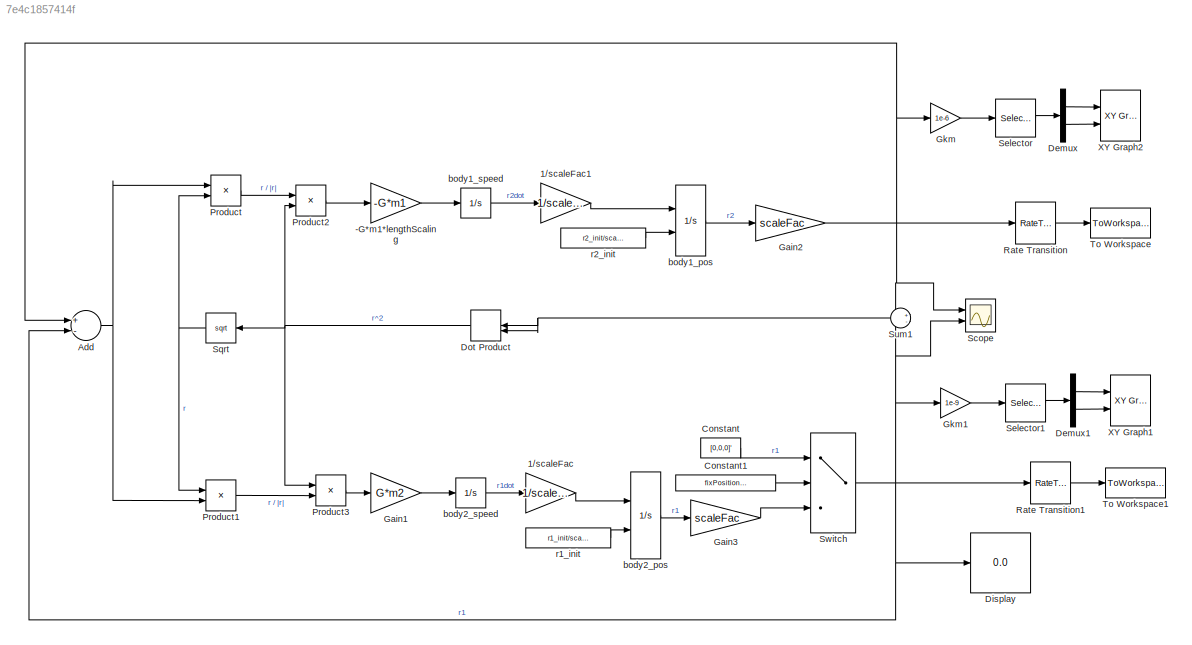
MODEL slx_7e4c1857414f
KIND model
BLOCK [Gain] -G*m1*lengthScaling
  Gain = -G*m1
  OutDataTypeStr = Inherit: Inherit via internal rule
  ParamDataTypeStr = Inherit: Inherit via internal rule
  SaturateOnIntegerOverflow = off
BLOCK [Gain] 1//scaleFac
  Gain = 1/scaleFac
  OutDataTypeStr = Inherit: Inherit via internal rule
  ParamDataTypeStr = Inherit: Inherit via internal rule
  SaturateOnIntegerOverflow = off
BLOCK [Gain] 1//scaleFac1
  Gain = 1/scaleFac
  OutDataTypeStr = Inherit: Inherit via internal rule
  ParamDataTypeStr = Inherit: Inherit via internal rule
  SaturateOnIntegerOverflow = off
BLOCK [Sum] Add
  InputSameDT = off
  Inputs = +-
  OutDataTypeStr = Inherit: Inherit via internal rule
  Ports = [2, 1]
  SaturateOnIntegerOverflow = off
BLOCK [Constant] Constant
  Value = [0,0,0]'
BLOCK [Constant] Constant1
  Value = fixPositionOfMass1
BLOCK [Demux] Demux
  Commented = on
  DisplayOption = bar
  Outputs = 2
  Ports = [1, 2]
BLOCK [Demux] Demux1
  Commented = on
  DisplayOption = bar
  Outputs = 2
  Ports = [1, 2]
BLOCK [Display] Display
  Decimation = 1
  Ports = [1]
BLOCK [DotProduct] Dot Product
  OutDataTypeStr = Inherit: Inherit via internal rule
BLOCK [Gain] Gain1
  Gain = G*m2
  OutDataTypeStr = Inherit: Inherit via internal rule
  ParamDataTypeStr = Inherit: Inherit via internal rule
  SaturateOnIntegerOverflow = off
BLOCK [Gain] Gain2
  Gain = scaleFac
  OutDataTypeStr = Inherit: Inherit via internal rule
  ParamDataTypeStr = Inherit: Inherit via internal rule
  SaturateOnIntegerOverflow = off
BLOCK [Gain] Gain3
  Gain = scaleFac
  OutDataTypeStr = Inherit: Inherit via internal rule
  ParamDataTypeStr = Inherit: Inherit via internal rule
  SaturateOnIntegerOverflow = off
BLOCK [Gain] Gkm
  Commented = on
  Gain = 1e-6
  OutDataTypeStr = Inherit: Inherit via internal rule
  ParamDataTypeStr = Inherit: Inherit via internal rule
  SaturateOnIntegerOverflow = off
BLOCK [Gain] Gkm1
  Commented = on
  Gain = 1e-9
  OutDataTypeStr = Inherit: Inherit via internal rule
  ParamDataTypeStr = Inherit: Inherit via internal rule
  SaturateOnIntegerOverflow = off
BLOCK [Product] Product
  InputSameDT = off
  Inputs = */
  OutDataTypeStr = Inherit: Inherit via internal rule
  Ports = [2, 1]
  RndMeth = Floor
  SaturateOnIntegerOverflow = off
BLOCK [Product] Product1
  InputSameDT = off
  Inputs = /*
  OutDataTypeStr = Inherit: Inherit via internal rule
  Ports = [2, 1]
  RndMeth = Floor
  SaturateOnIntegerOverflow = off
BLOCK [Product] Product2
  InputSameDT = off
  Inputs = */
  OutDataTypeStr = Inherit: Inherit via internal rule
  Ports = [2, 1]
  RndMeth = Floor
  SaturateOnIntegerOverflow = off
BLOCK [Product] Product3
  InputSameDT = off
  Inputs = /*
  OutDataTypeStr = Inherit: Inherit via internal rule
  Ports = [2, 1]
  RndMeth = Floor
  SaturateOnIntegerOverflow = off
BLOCK [RateTransition] Rate Transition
  OutPortSampleTime = T_sample
BLOCK [RateTransition] Rate Transition1
  OutPortSampleTime = T_sample
BLOCK [Scope] Scope
  DataFormat = StructureWithTime
  Floating = off
  LimitDataPoints = off
  NumInputPorts = 2
  Ports = [2]
  SampleTime = 0
  ShowLegends = off
  YMax = 2e+07~2.25e+06
  YMin = -2e+07~-2.25e+06
  ZoomMode = xonly
BLOCK [Selector] Selector
  Commented = on
  Indices = [1 2]
  InputPortWidth = 3
  Ports = [1, 1]
BLOCK [Selector] Selector1
  Commented = on
  Indices = [1 2]
  InputPortWidth = 3
  Ports = [1, 1]
BLOCK [Sqrt] Sqrt
BLOCK [Sum] Sum1
  IconShape = round
  InputSameDT = off
  Inputs = +-
  OutDataTypeStr = Inherit: Inherit via internal rule
  Ports = [2, 1]
  SaturateOnIntegerOverflow = off
BLOCK [Switch] Switch
  Criteria = u2 > Threshold
  InputSameDT = off
  SaturateOnIntegerOverflow = off
BLOCK [ToWorkspace] To Workspace
  FixptAsFi = on
  MaxDataPoints = inf
  Ports = [1]
  SampleTime = -1
  Save2DSignal = 3-D array (concatenate along third dimension)
  SaveFormat = Timeseries
  VariableName = r2
BLOCK [ToWorkspace] To Workspace1
  FixptAsFi = on
  MaxDataPoints = inf
  Ports = [1]
  SampleTime = -1
  Save2DSignal = 3-D array (concatenate along third dimension)
  SaveFormat = Timeseries
  VariableName = r1
BLOCK [Reference] XY Graph1  REF=simulink/Sinks/XY Graph
  Commented = on
  Ports = [2]
  SourceBlock = simulink/Sinks/XY Graph
  SourceType = XY scope.
  st = -1
  xmax = r2_init(1)*1.5
  xmin = -r2_init(1)*1.5
  ymax = r2_init(1)*1.5
  ymin = -r2_init(1)*1.5
BLOCK [Reference] XY Graph2  REF=simulink/Sinks/XY Graph
  Commented = on
  Ports = [2]
  SourceBlock = simulink/Sinks/XY Graph
  SourceType = XY scope.
  st = -1
  xmax = r2_init(1)*1.5
  xmin = -r2_init(1)*1.5
  ymax = r2_init(1)*1.5
  ymin = -r2_init(1)*1.5
BLOCK [Integrator] body1_pos
  InitialCondition = r2_init
  InitialConditionSource = external
  Ports = [2, 1]
BLOCK [Integrator] body1_speed
  InitialCondition = r2dot_init
  Ports = [1, 1]
BLOCK [Integrator] body2_pos
  InitialCondition = r1_init
  InitialConditionSource = external
  Ports = [2, 1]
BLOCK [Integrator] body2_speed
  InitialCondition = r1dot_init
  Ports = [1, 1]
BLOCK [Constant] r1_init
  Value = r1_init/scaleFac
BLOCK [Constant] r2_init
  Value = r2_init/scaleFac
LINE -G*m1*lengthScaling:1 -> body1_speed:1
LINE 1//scaleFac1:1 -> body1_pos:1
LINE 1//scaleFac:1 -> body2_pos:1
NET Add:1 -> Product1:2, Product:1
LINE Constant1:1 -> Switch:2
LINE Constant:1 -> Switch:1
LINE Demux1:1 -> XY Graph1:1
LINE Demux1:2 -> XY Graph1:2
LINE Demux:1 -> XY Graph2:1
LINE Demux:2 -> XY Graph2:2
NET Dot Product:1 -> Product2:2, Product3:1, Sqrt:1
LINE Gain1:1 -> body2_speed:1
NET Gain2:1 -> Add:1, Gkm:1, Rate Transition:1, Scope:1, Sum1:1
LINE Gain3:1 -> Switch:3
LINE Gkm1:1 -> Selector1:1
LINE Gkm:1 -> Selector:1
LINE Product1:1 -> Product3:2
LINE Product2:1 -> -G*m1*lengthScaling:1
LINE Product3:1 -> Gain1:1
LINE Product:1 -> Product2:1
LINE Rate Transition1:1 -> To Workspace1:1
LINE Rate Transition:1 -> To Workspace:1
LINE Selector1:1 -> Demux1:1
LINE Selector:1 -> Demux:1
NET Sqrt:1 -> Product1:1, Product:2
NET Sum1:1 -> Dot Product:1, Dot Product:2
NET Switch:1 -> Add:2, Display:1, Gkm1:1, Rate Transition1:1, Scope:2, Sum1:2
LINE body1_pos:1 -> Gain2:1
LINE body1_speed:1 -> 1//scaleFac1:1
LINE body2_pos:1 -> Gain3:1
LINE body2_speed:1 -> 1//scaleFac:1
LINE r1_init:1 -> body2_pos:2
LINE r2_init:1 -> body1_pos:2
note: NET lines group one-source signal fan-out (src -> all destinations, sorted); 1:1 wires keep LINE
